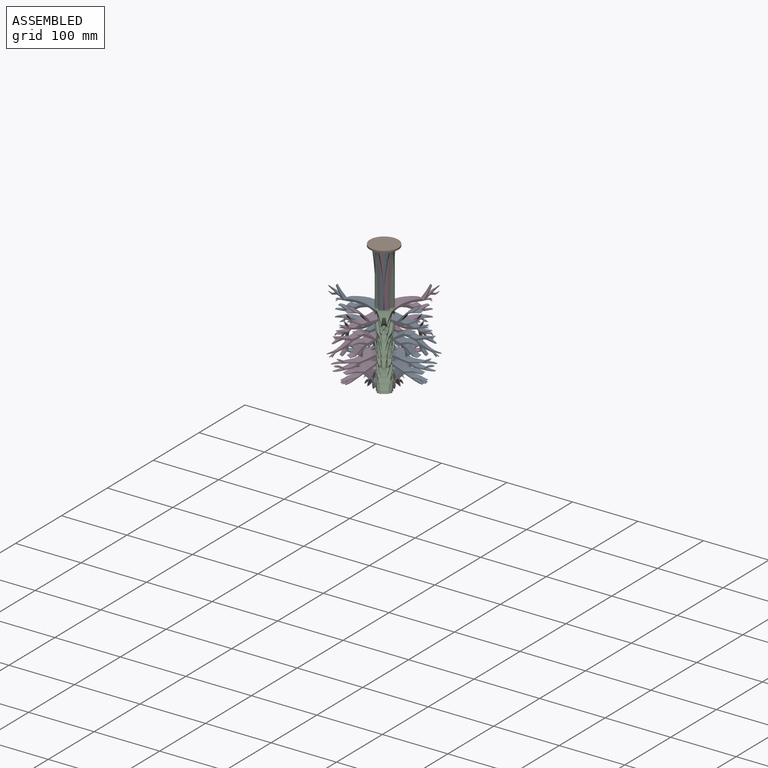
[diagram: assembled view]
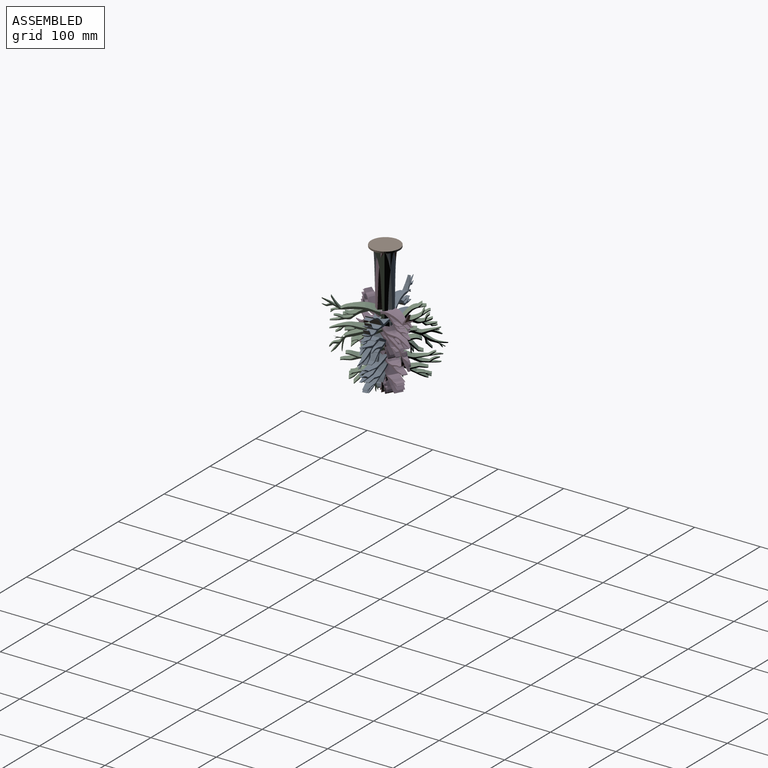
[diagram: assembled view, second angle]
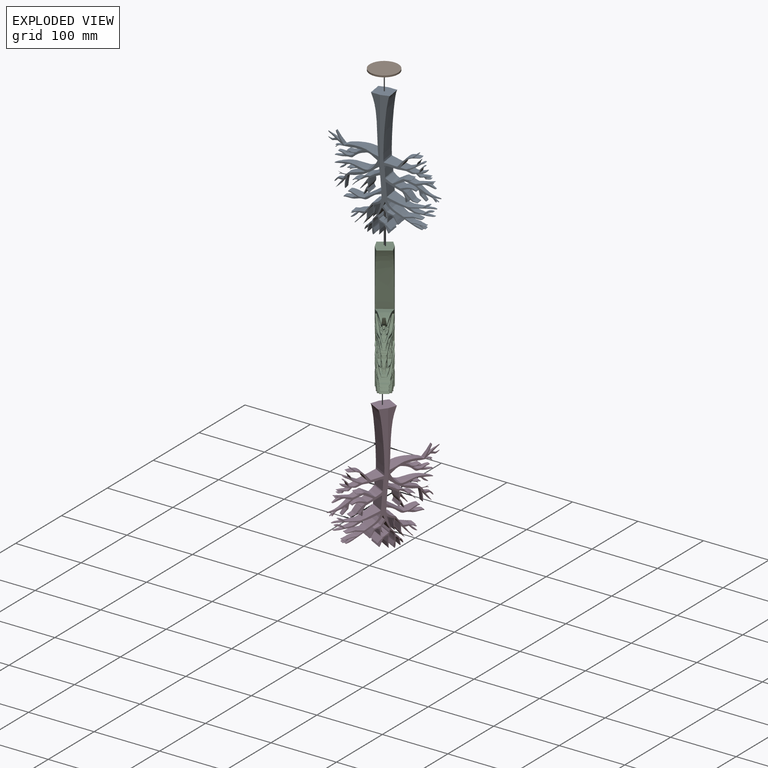
[diagram: exploded view]
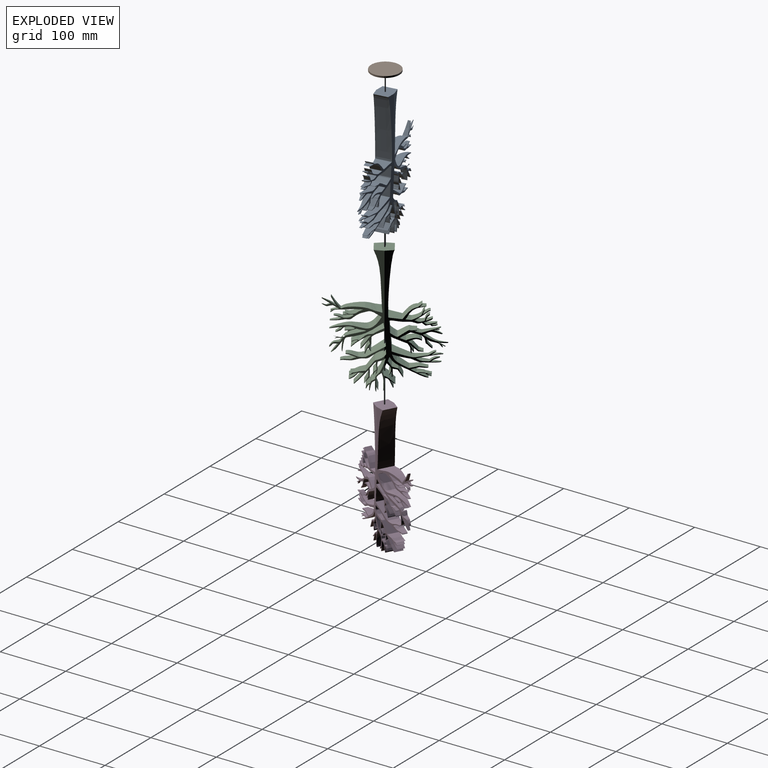
[diagram: exploded view, second angle]
ASSEMBLY  parts=4 mates=3
PART A: 77 faces, bbox 207.4x244.9x74.4 mm
  f0: extruded ~85.78x24.29mm, area 2026.7mm2, adj f1,f11,f25,f26
  f1: extruded ~64.2x24.29mm, area 968.1mm2, adj f0,f2,f25,f26
  f2: extruded ~13.46x6.87mm, area 70.7mm2, adj f1,f3,f25,f26
  f3: extruded ~18.18x10.02mm, area 61.8mm2, adj f2,f25,f26
  f4: extruded ~31.7x12.41mm, area 180.4mm2, adj f5,f12,f22
  f5: extruded ~24.68x9.95mm, area 207.2mm2, adj f4,f6,f12,f22
  f6: extruded ~39.08x15.06mm, area 423.7mm2, adj f5,f7,f12,f22
  f7: extruded ~60.21x23.2mm, area 2172.8mm2, adj f6,f8,f12,f22
  f8: extruded ~19.09x13.12mm, area 329.5mm2, adj f7,f9,f12,f22
  f9: extruded ~31.1x17.97mm, area 1167.6mm2, adj f8,f10,f12,f22
  f10: extruded ~95.84x47.91mm, area 3055mm2, adj f9,f11,f12,f22
  f11: plane 26.45x25.03mm, normal (0,-1,0), area 606.6mm2, adj f0,f10,f12,f22,f25,f26
  f12: plane 181.57x82.07mm, normal (0.16,0,-0.99), area 2547.9mm2, adj f4,f5,f6,f7,f8,f9,f10,f11
  f13: plane 17.12x13.52mm, normal (0.16,0,-0.99), area 36.3mm2, adj f15,f46
  f14: plane 10.43x1.46mm, normal (0.16,0,-0.99), area 1.7mm2, adj f15,f47
  f15: plane 41.7x23.56mm, normal (-0.16,0,-0.99), area 151.4mm2, adj f12,f13,f14,f45,f46,f47,f48,f49
  f16: plane 45.63x41.58mm, normal (-0.16,0,-0.99), area 244mm2, adj f12,f50,f51,f52,f53,f54,f55
  f17: plane 55.62x22.3mm, normal (-0.16,0,-0.99), area 87.7mm2, adj f12,f56,f57,f58
  f18: plane 40.34x23.09mm, normal (-0.15,0,0.99), area 119.2mm2, adj f22,f23,f24,f45,f46,f47,f48,f49
  f19: plane 59.86x55.78mm, normal (-0.15,0,0.99), area 163.1mm2, adj f22,f50,f51,f52,f53,f54,f55
  f20: plane 55.2x22.03mm, normal (-0.15,0,0.99), area 159.8mm2, adj f22,f56,f57,f58
  f21: plane 41.66x36.77mm, normal (-0.15,0,0.99), area 171mm2, adj f22,f59,f60,f61,f62,f63,f64
  f22: plane 181.56x82.48mm, normal (0.15,0,0.99), area 2071mm2, adj f4,f5,f6,f7,f8,f9,f10,f11
  f23: plane 17.4x13.94mm, normal (0.15,0,0.99), area 28mm2, adj f18,f46
  f24: plane 15.24x0.69mm, normal (0.15,0,0.99), area 6.9mm2, adj f18,f47
  f25: plane 194.94x127.86mm, normal (-0.16,0,-0.99), area 1718.3mm2, adj f0,f1,f2,f3,f11,f12,f26,f27
  f26: plane 149.91x82.4mm, normal (-0.15,0,0.99), area 1484.2mm2, adj f0,f1,f2,f3,f11,f22,f25,f27
  f27: extruded ~10.9x6.47mm, area 25.1mm2, adj f25,f26,f28
  f28: extruded ~10.9x3.48mm, area 22.1mm2, adj f25,f26,f27
  f29: extruded ~26.7x12.43mm, area 194.2mm2, adj f12,f22,f30
  f30: extruded ~27.58x23.8mm, area 508.4mm2, adj f12,f22,f29,f31
  f31: extruded ~29.24x27.81mm, area 1672.4mm2, adj f12,f22,f30,f32
  f32: extruded ~15.04x10.42mm, area 247.1mm2, adj f12,f22,f31,f33
  f33: extruded ~15.99x13.84mm, area 321.8mm2, adj f12,f22,f32,f34
  f34: extruded ~57.04x30.63mm, area 1709.9mm2, adj f12,f22,f33,f35
  f35: extruded ~34.27x12.67mm, area 313.1mm2, adj f12,f22,f34,f36
  f36: extruded ~30.04x12.67mm, area 321.9mm2, adj f12,f22,f35,f37
  f37: extruded ~62.06x22.1mm, area 886.8mm2, adj f12,f22,f36,f38
  f38: extruded ~49.52x33.05mm, area 1795.7mm2, adj f12,f22,f37,f39
  f39: extruded ~48.56x32.17mm, area 1098.5mm2, adj f12,f22,f38,f40
  f40: extruded ~23.7x5.58mm, area 140.7mm2, adj f12,f22,f39,f41
  f41: extruded ~23.91x23.7mm, area 1057mm2, adj f12,f22,f40,f42
  f42: extruded ~21.96x10.53mm, area 231.4mm2, adj f12,f22,f41,f43
  f43: extruded ~22.19x7.38mm, area 196.8mm2, adj f12,f22,f42,f44
  f44: extruded ~24.14x16.14mm, area 553.9mm2, adj f12,f22,f43,f45
  f45: extruded ~25.03x11.93mm, area 324.4mm2, adj f12,f15,f18,f22,f44,f46
  f46: extruded ~25.03x22.43mm, area 1442.6mm2, adj f13,f15,f18,f23,f45,f47
  f47: extruded ~25.03x24.21mm, area 1073mm2, adj f14,f15,f18,f24,f46,f48
  f48: extruded ~26.4x23.97mm, area 1203.9mm2, adj f15,f18,f47,f49
  f49: extruded ~45.94x25.03mm, area 1801mm2, adj f12,f15,f18,f22,f48,f50
  f50: extruded ~25.03x23.95mm, area 1384.7mm2, adj f12,f16,f19,f22,f49,f51
  f51: extruded ~31.75x28.15mm, area 1447.2mm2, adj f16,f19,f50,f52
  f52: extruded ~16.83x15.58mm, area 297.6mm2, adj f16,f19,f51,f53
  f53: extruded ~18.88x16.83mm, area 490.3mm2, adj f16,f19,f52,f54
  f54: extruded ~20.84x17.53mm, area 534.2mm2, adj f16,f19,f53,f55
  f55: extruded ~31.06x25.71mm, area 939.3mm2, adj f12,f16,f19,f22,f54,f56
  f56: extruded ~57.26x25.03mm, area 1433.9mm2, adj f12,f17,f20,f22,f55,f57
  f57: extruded ~24.98x17.49mm, area 349.7mm2, adj f17,f20,f56,f58
  f58: plane 25.18x25.03mm, normal (-0.54,-0.84,0), area 642mm2, adj f12,f17,f20,f22,f57,f59
  f59: extruded ~25.03x21.42mm, area 985.4mm2, adj f12,f21,f22,f25,f58,f60
  f60: extruded ~19.78x13.48mm, area 275.2mm2, adj f21,f25,f59,f61
  f61: extruded ~19.75x14.23mm, area 680.6mm2, adj f21,f25,f60,f62
  f62: plane 19.31x4.79mm, normal (-0.95,0.3,0), area 95.8mm2, adj f21,f25,f61,f63
  f63: extruded ~19.63x18.67mm, area 682.1mm2, adj f21,f25,f62,f64
  f64: extruded ~41.83x36.29mm, area 1829.5mm2, adj f21,f22,f25,f26,f63,f65
  f65: extruded ~52.34x43.52mm, area 1233.5mm2, adj f25,f26,f64,f66
  f66: extruded ~17.43x14.83mm, area 142.1mm2, adj f25,f26,f65,f67
  f67: extruded ~21.29x17.35mm, area 273.8mm2, adj f25,f26,f66,f68
  f68: extruded ~40.91x17.67mm, area 748.6mm2, adj f25,f26,f67,f69
  f69: extruded ~64.45x25.43mm, area 2424.6mm2, adj f25,f26,f68,f70
  f70: extruded ~64.87x23.92mm, area 1254mm2, adj f25,f26,f69,f71
  f71: extruded ~25.37x16.53mm, area 468.2mm2, adj f25,f26,f70,f72
  f72: extruded ~41.12x16.53mm, area 433.8mm2, adj f25,f26,f71,f73
  f73: extruded ~4.34x2.6mm, area 12.6mm2, adj f25,f26,f72,f74
  f74: extruded ~9.61x6.61mm, area 51mm2, adj f25,f26,f73,f75
  f75: extruded ~7.65x6.83mm, area 54.8mm2, adj f25,f26,f74,f76
  f76: extruded ~13.7x4.38mm, area 31.4mm2, adj f25,f26,f75
PART B: 3 faces, bbox 43.3x2.5x43.3 mm
  f0: cylinder r=21.64mm len=43.28mm, axis (0,1,0), area 345.4mm2, adj f1,f2
  f1: plane 43.28x43.28mm, normal (0,-1,0), area 1471.3mm2, adj f0
  f2: plane 43.28x43.28mm, normal (0,1,0), area 1471.3mm2, adj f0
PART C: same geometry as A
PART D: same geometry as A
PLACE A rot(axis=(-0.99,-0.07,0.07),90.3deg) t=(-47.83,-131.75,-12.45)mm
PLACE B rot(axis=(-0.99,-0.07,0.07),90.3deg) t=(10.64,-166.62,-12.45)mm
PLACE C rot(axis=(-0.35,-0.66,0.66),141.5deg) t=(-43.75,-109.71,-12.45)mm
PLACE D rot(axis=(-0.39,0.65,-0.65),137.3deg) t=(-67.32,-117.35,-12.45)mm
MATE planar C.f11 <-> B.f0  axis (0,0,1) through (-52.21,-120.23,105.5)mm
MATE planar B.f0 <-> A.f11  axis (0,0,-1) through (-53.59,-119.55,105.5)mm
MATE planar D.f11 <-> B.f0  axis (0,0,1) through (-54.08,-119.99,105.5)mm
